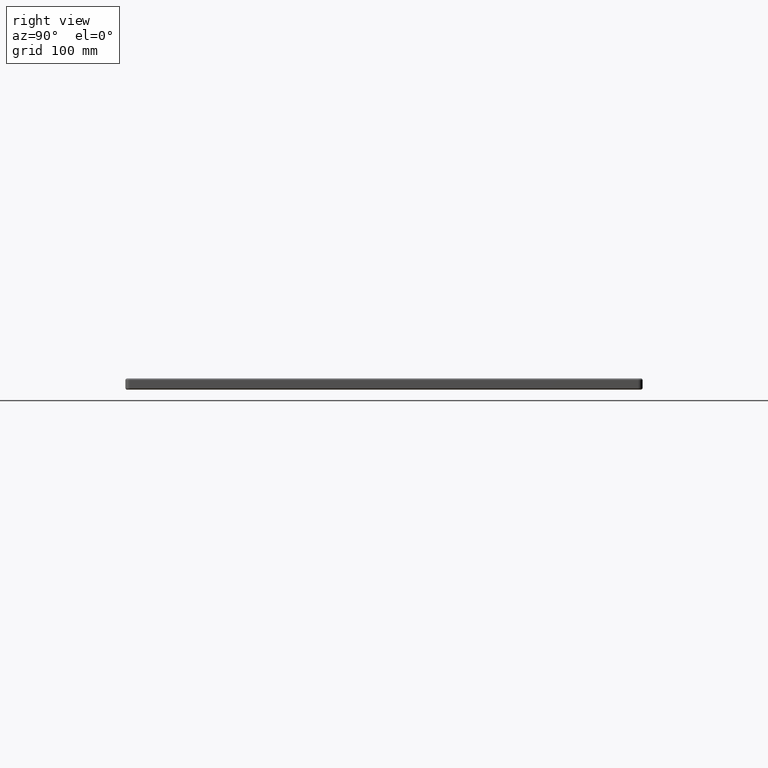
[diagram: clean part render]
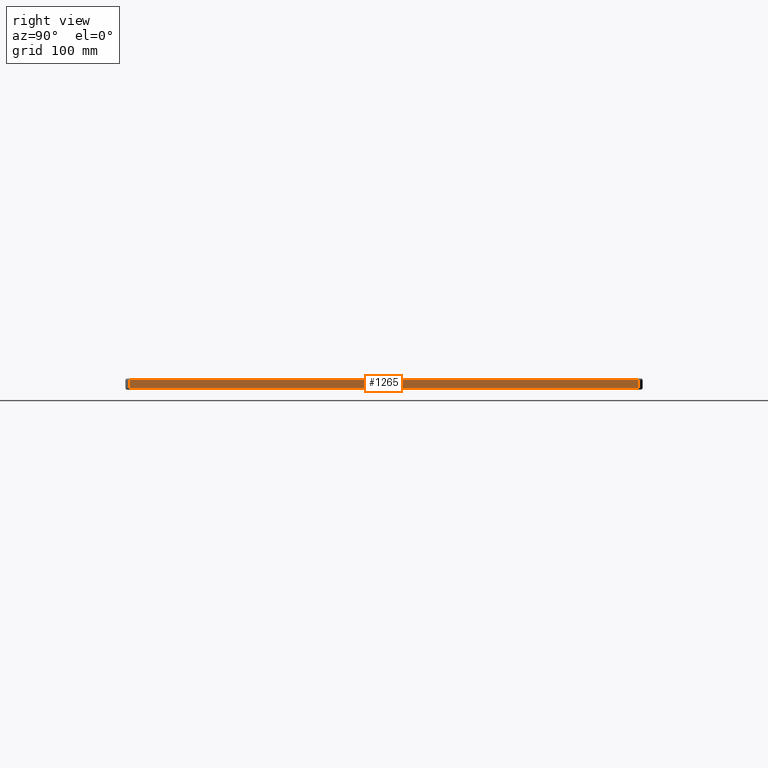
[diagram: same view with one face highlighted and labeled with its STEP entity id]
A machine part, right view. The second image highlights one B-rep face of the part: STEP entity #1265.
In plain terms, the highlighted planar face has unit normal (1, 0, -0).
Its self-contained STEP definition (entity closure, byte-faithful):
#1265 = ADVANCED_FACE ( 'NONE', ( #6257 ), #32707, .T. ) ;
#4869 = CARTESIAN_POINT ( 'NONE',  ( 300.0000000000000600, 295.0000000000001100, -13.00000000000000000 ) ) ;
#6257 = FACE_OUTER_BOUND ( 'NONE', #10690, .T. ) ;
#6316 = CARTESIAN_POINT ( 'NONE',  ( 300.0000000000002800, -295.0000000000000000, -11.00000000000000000 ) ) ;
#7450 = CARTESIAN_POINT ( 'NONE',  ( 300.0000000000001700, -294.9999999999999400, -2.000000000000000000 ) ) ;
#8373 = VERTEX_POINT ( 'NONE', #38326 ) ;
#9632 = CARTESIAN_POINT ( 'NONE',  ( 300.0000000000000600, 295.0000000000001100, -11.00000000000000000 ) ) ;
#10319 = VECTOR ( 'NONE', #23997, 1000.000000000000000 ) ;
#10333 = VERTEX_POINT ( 'NONE', #6316 ) ;
#10690 = EDGE_LOOP ( 'NONE', ( #17339, #17916, #39989, #32597 ) ) ;
#12421 = LINE ( 'NONE', #20312, #17877 ) ;
#12810 = VERTEX_POINT ( 'NONE', #9632 ) ;
#12815 = CARTESIAN_POINT ( 'NONE',  ( 300.0000000000002800, -295.0000000000000000, -13.00000000000000000 ) ) ;
#13879 = CARTESIAN_POINT ( 'NONE',  ( 300.0000000000001700, -295.0000000000000000, -13.00000000000000000 ) ) ;
#14108 = DIRECTION ( 'NONE',  ( -1.881733940042638400E-016, 1.000000000000000000, 0.0000000000000000000 ) ) ;
#14296 = DIRECTION ( 'NONE',  ( 1.881733940042638400E-016, -1.000000000000000000, -0.0000000000000000000 ) ) ;
#14549 = VECTOR ( 'NONE', #34813, 1000.000000000000000 ) ;
#17339 = ORIENTED_EDGE ( 'NONE', *, *, #37423, .F. ) ;
#17877 = VECTOR ( 'NONE', #14108, 1000.000000000000000 ) ;
#17916 = ORIENTED_EDGE ( 'NONE', *, *, #28650, .T. ) ;
#18504 = EDGE_CURVE ( 'NONE', #12810, #36892, #18721, .T. ) ;
#18721 = LINE ( 'NONE', #4869, #10319 ) ;
#20312 = CARTESIAN_POINT ( 'NONE',  ( 300.0000000000001700, -295.0000000000000000, -11.00000000000000000 ) ) ;
#21018 = DIRECTION ( 'NONE',  ( -1.881733940042638400E-016, 1.000000000000000000, 0.0000000000000000000 ) ) ;
#21382 = AXIS2_PLACEMENT_3D ( 'NONE', #13879, #30533, #21018 ) ;
#23369 = EDGE_CURVE ( 'NONE', #36892, #8373, #35808, .T. ) ;
#23997 = DIRECTION ( 'NONE',  ( 0.0000000000000000000, 0.0000000000000000000, 1.000000000000000000 ) ) ;
#28650 = EDGE_CURVE ( 'NONE', #10333, #12810, #12421, .T. ) ;
#30533 = DIRECTION ( 'NONE',  ( 1.000000000000000000, 1.881733940042638400E-016, -0.0000000000000000000 ) ) ;
#32597 = ORIENTED_EDGE ( 'NONE', *, *, #23369, .T. ) ;
#32707 = PLANE ( 'NONE',  #21382 ) ;
#34807 = VECTOR ( 'NONE', #14296, 1000.000000000000000 ) ;
#34813 = DIRECTION ( 'NONE',  ( 0.0000000000000000000, 0.0000000000000000000, 1.000000000000000000 ) ) ;
#35808 = LINE ( 'NONE', #7450, #34807 ) ;
#36702 = LINE ( 'NONE', #12815, #14549 ) ;
#36892 = VERTEX_POINT ( 'NONE', #39515 ) ;
#37423 = EDGE_CURVE ( 'NONE', #10333, #8373, #36702, .T. ) ;
#38326 = CARTESIAN_POINT ( 'NONE',  ( 300.0000000000002800, -295.0000000000000000, -2.000000000000001800 ) ) ;
#39515 = CARTESIAN_POINT ( 'NONE',  ( 300.0000000000000600, 295.0000000000001100, -2.000000000000003600 ) ) ;
#39989 = ORIENTED_EDGE ( 'NONE', *, *, #18504, .T. ) ;